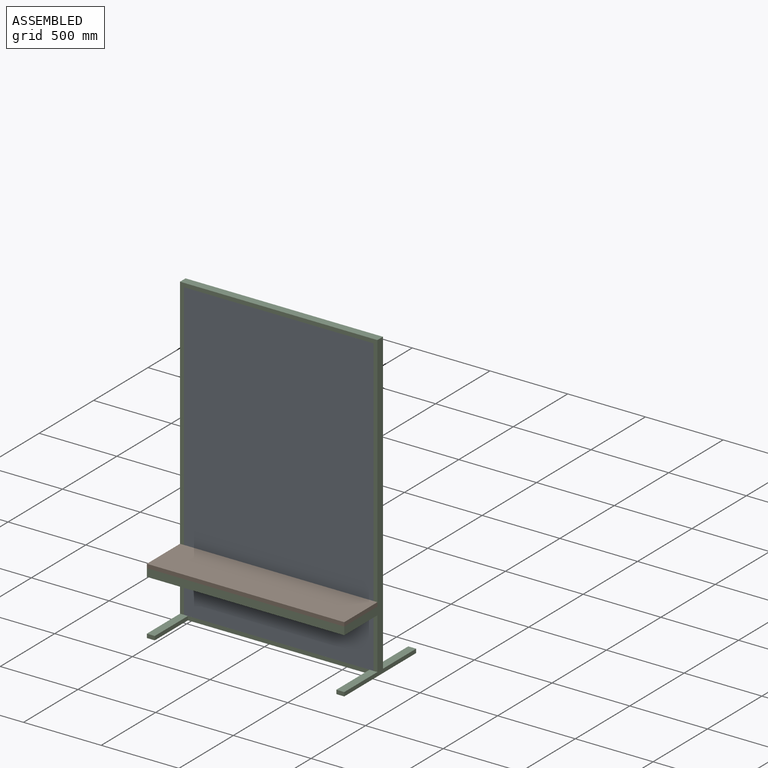
[diagram: assembled view]
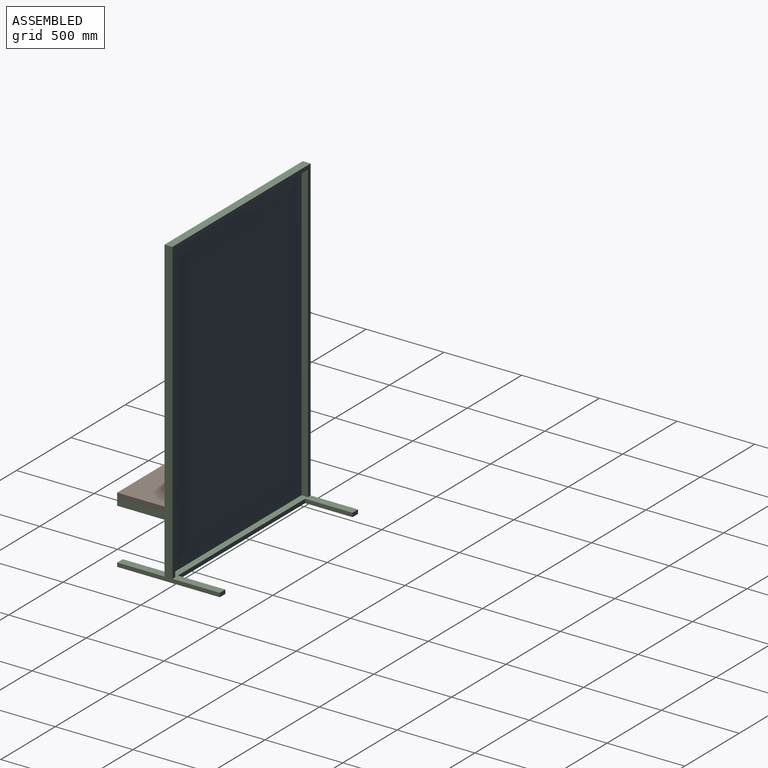
[diagram: assembled view, second angle]
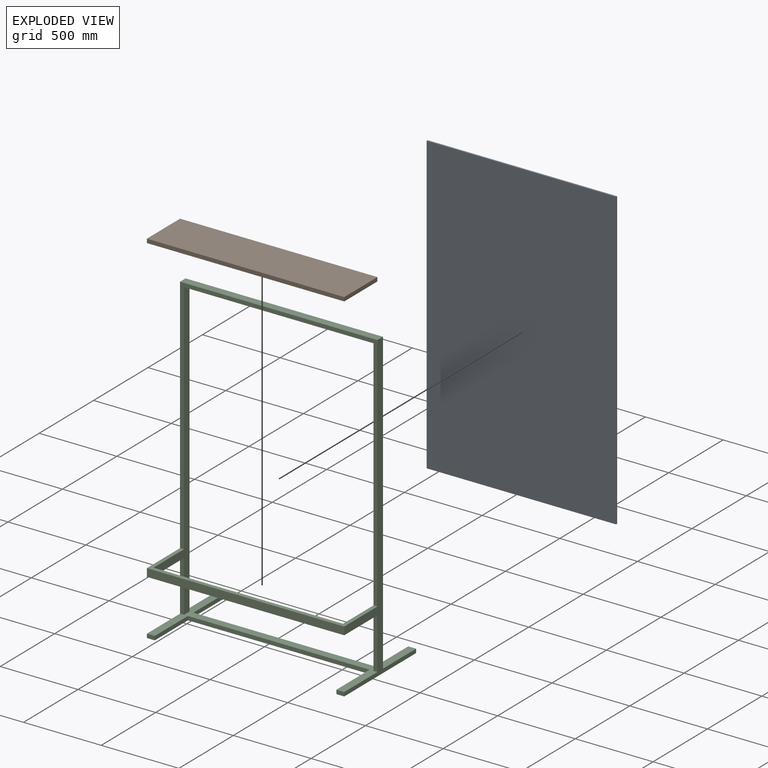
[diagram: exploded view]
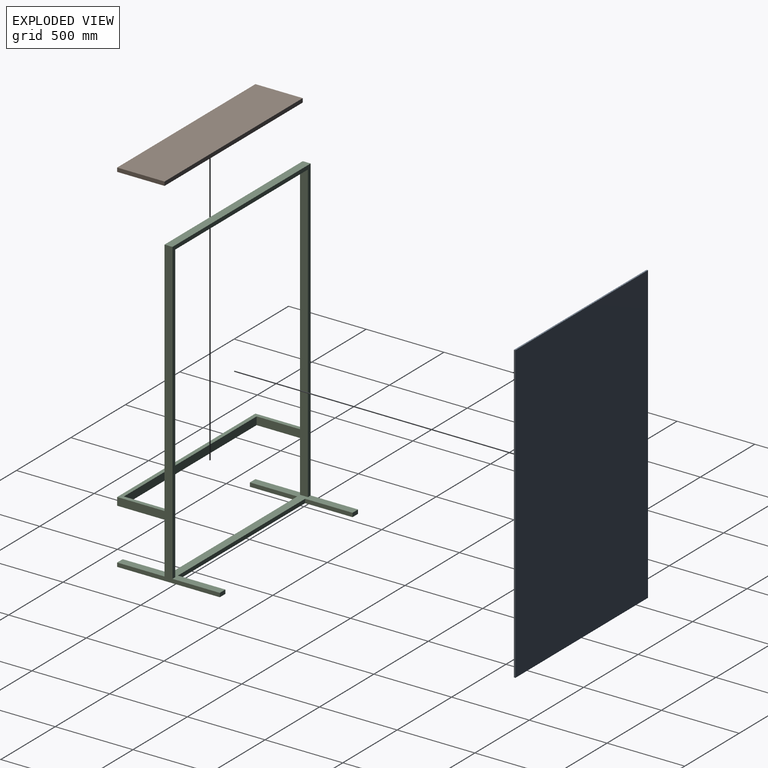
[diagram: exploded view, second angle]
ASSEMBLY  parts=3 mates=2
PART A: 6 faces, bbox 1219.2x9.5x1905 mm
  f0: plane 1905x9.53mm, normal (-1,0,0), area 18145.1mm2, adj f1,f3,f4,f5
  f1: plane 1219.2x9.53mm, normal (0,0,-1), area 11612.9mm2, adj f0,f2,f4,f5
  f2: plane 1905x9.53mm, normal (1,0,0), area 18145.1mm2, adj f1,f3,f4,f5
  f3: plane 1219.2x9.53mm, normal (0,0,1), area 11612.9mm2, adj f0,f2,f4,f5
  f4: plane 1905x1219.2mm, normal (0,-1,0), area 2322576mm2, adj f0,f1,f2,f3
  f5: plane 1905x1219.2mm, normal (0,1,0), area 2322576mm2, adj f0,f1,f2,f3
PART B: 6 faces, bbox 1270x304.8x25.4 mm
  f0: plane 1270x25.4mm, normal (0,1,0), area 32258mm2, adj f1,f3,f4,f5
  f1: plane 304.8x25.4mm, normal (-1,0,0), area 7741.9mm2, adj f0,f2,f4,f5
  f2: plane 1270x25.4mm, normal (0,-1,0), area 32258mm2, adj f1,f3,f4,f5
  f3: plane 304.8x25.4mm, normal (1,0,0), area 7741.9mm2, adj f0,f2,f4,f5
  f4: plane 1270x304.8mm, normal (0,0,1), area 387096mm2, adj f0,f1,f2,f3
  f5: plane 1270x304.8mm, normal (0,0,-1), area 387096mm2, adj f0,f1,f2,f3
PART C: 26 faces, bbox 1270x660.4x1955.8 mm
  f0: plane 1905x330.2mm, normal (-1,0,0), area 110967.5mm2, adj f1,f2,f3,f6,f8,f22,f23,f25
  f1: plane 1549.4x1270mm, normal (0,-1,0), area 109677.2mm2, adj f0,f7,f8,f9,f10,f12,f22
  f2: plane 330.2x25.4mm, normal (0,-1,0), area 8387.1mm2, adj f0,f6,f12,f23
  f3: plane 1930.4x1270mm, normal (0,1,0), area 129032mm2, adj f0,f6,f7,f8,f9,f10,f12
  f4: plane 1168.4x25.4mm, normal (0,-1,0), area 29677.4mm2, adj f6,f11,f14,f16
  f5: plane 330.2x25.4mm, normal (0,-1,0), area 8387.1mm2, adj f6,f7,f10,f23
  f6: plane 1270x660.4mm, normal (0,0,1), area 123870.7mm2, adj f0,f2,f3,f4,f5,f7,f10,f12
  f7: plane 1905x330.2mm, normal (1,0,0), area 110967.5mm2, adj f1,f3,f5,f6,f8,f22,f23,f25
  f8: plane 1219.2x50.8mm, normal (0,0,-1), area 61935.4mm2, adj f0,f1,f3,f7
  f9: plane 1270x50.8mm, normal (0,0,1), area 64516mm2, adj f1,f3,f10,f12
  f10: plane 1955.8x660.4mm, normal (-1,0,0), area 130322.3mm2, adj f1,f3,f5,f6,f9,f11,f15,f21
  f11: plane 1270x660.4mm, normal (0,0,-1), area 126451.4mm2, adj f4,f10,f12,f13,f14,f15,f16,f17
  f12: plane 1955.8x660.4mm, normal (1,0,0), area 130322.3mm2, adj f1,f2,f3,f6,f9,f11,f17,f19
  f13: plane 1168.4x25.4mm, normal (0,1,0), area 29677.4mm2, adj f6,f11,f18,f20
  f14: plane 304.8x25.4mm, normal (1,0,0), area 7741.9mm2, adj f4,f6,f11,f15
  f15: plane 50.8x25.4mm, normal (0,-1,0), area 1290.3mm2, adj f6,f10,f11,f14
  f16: plane 304.8x25.4mm, normal (-1,0,0), area 7741.9mm2, adj f4,f6,f11,f17
  f17: plane 50.8x25.4mm, normal (0,-1,0), area 1290.3mm2, adj f6,f11,f12,f16
  f18: plane 304.8x25.4mm, normal (-1,0,0), area 7741.9mm2, adj f6,f11,f13,f19
  f19: plane 50.8x25.4mm, normal (0,1,0), area 1290.3mm2, adj f6,f11,f12,f18
  f20: plane 304.8x25.4mm, normal (1,0,0), area 7741.9mm2, adj f6,f11,f13,f21
  f21: plane 50.8x25.4mm, normal (0,1,0), area 1290.3mm2, adj f6,f10,f11,f20
  f22: plane 1270x304.8mm, normal (0,0,1), area 46451.5mm2, adj f0,f1,f7,f10,f12,f24,f25
  f23: plane 1270x304.8mm, normal (0,0,-1), area 46451.5mm2, adj f0,f2,f5,f7,f10,f12,f24,f25
  f24: plane 1270x50.8mm, normal (0,-1,0), area 64516mm2, adj f10,f12,f22,f23
  f25: plane 1219.2x50.8mm, normal (0,1,0), area 61935.4mm2, adj f0,f7,f22,f23
PLACE A t=(0,-15.88,0)mm
PLACE B t=(-25.4,-25.4,381)mm
PLACE C at identity
MATE planar B.f5 <-> C.f22  axis (0,0,-1) through (-25.4,-330.2,381)mm
MATE planar A.f4 <-> C.f1  axis (0,-1,0) through (0,-25.4,1905)mm
